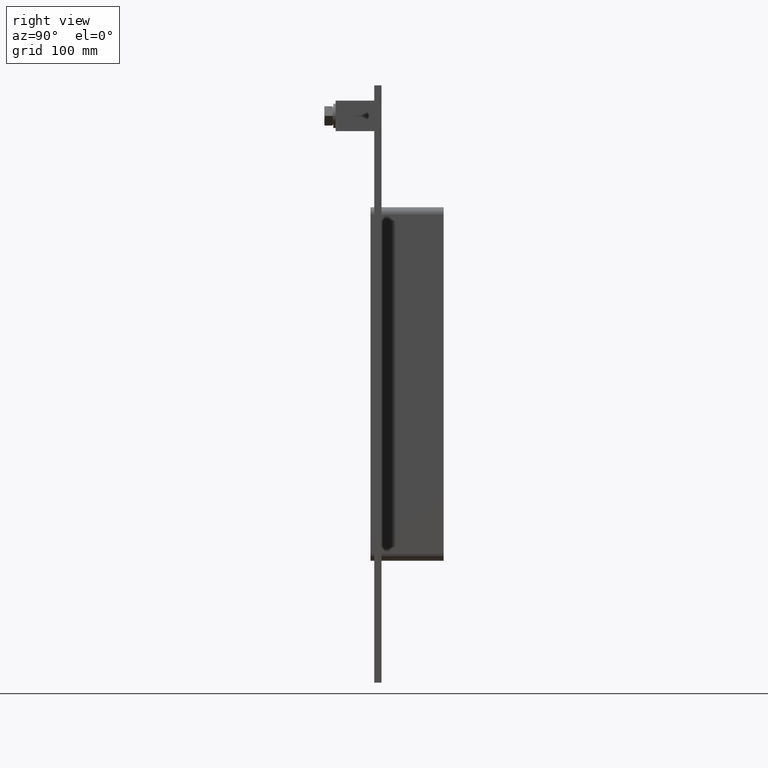
[diagram: clean part render]
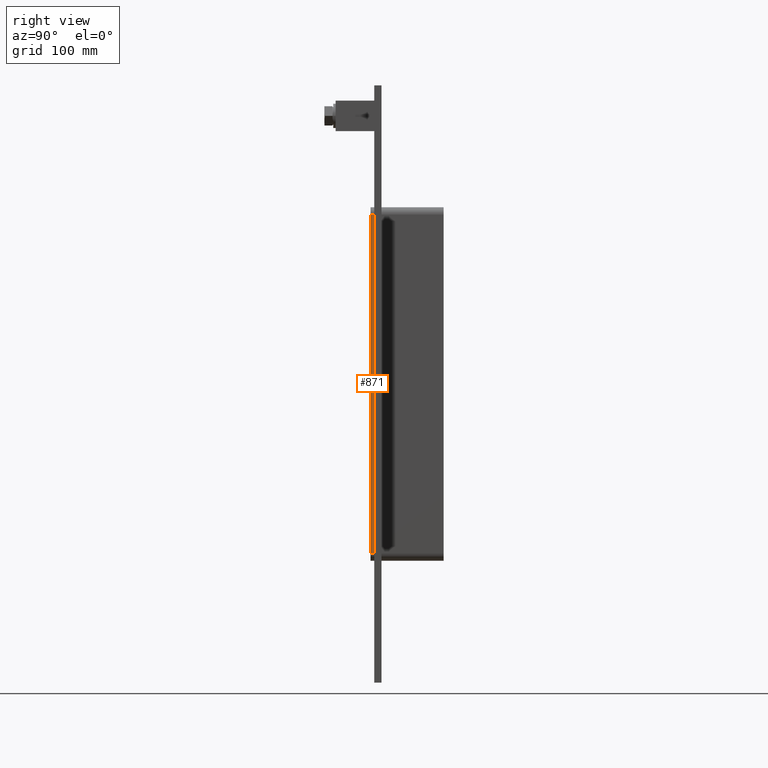
[diagram: same view with one face highlighted and labeled with its STEP entity id]
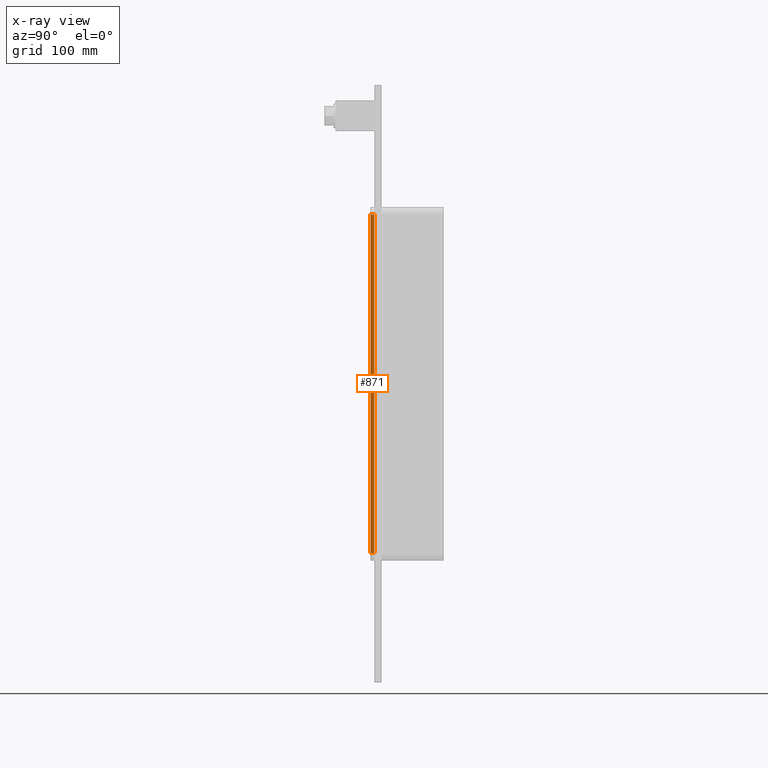
[diagram: x-ray of the same camera — body ghosted, the highlighted face saturated]
A machine part, right view. The second image highlights one B-rep face of the part: STEP entity #871.
The next image is the same camera in x-ray: the body ghosted, the highlighted face saturated — about 0% of this face is hidden behind the body in this view.
In plain terms, the highlighted planar face has unit normal (1, 0, 0).
Its self-contained STEP definition (entity closure, byte-faithful):
#576=CARTESIAN_POINT('',(66.25,0.0,139.0));
#577=VERTEX_POINT('',#576);
#585=CARTESIAN_POINT('',(66.25,0.0,-139.0));
#586=VERTEX_POINT('',#585);
#587=CARTESIAN_POINT('',(66.25,0.0,-139.0));
#588=DIRECTION('',(0.0,0.0,1.0));
#589=VECTOR('',#588,278.0);
#590=LINE('',#587,#589);
#591=EDGE_CURVE('',#586,#577,#590,.T.);
#742=CARTESIAN_POINT('',(66.25,-3.0,-139.0));
#743=VERTEX_POINT('',#742);
#744=CARTESIAN_POINT('',(66.25,0.0,-139.0));
#745=DIRECTION('',(0.0,-1.0,0.0));
#746=VECTOR('',#745,3.0);
#747=LINE('',#744,#746);
#748=EDGE_CURVE('',#586,#743,#747,.T.);
#848=CARTESIAN_POINT('',(66.25,0.0,145.0));
#849=DIRECTION('',(1.0,0.0,0.0));
#850=DIRECTION('',(0.0,0.0,-1.0));
#851=AXIS2_PLACEMENT_3D('',#848,#849,#850);
#852=PLANE('',#851);
#853=ORIENTED_EDGE('',*,*,#591,.T.);
#854=CARTESIAN_POINT('',(66.25,-3.0,139.0));
#855=VERTEX_POINT('',#854);
#856=CARTESIAN_POINT('',(66.25,-3.0,139.0));
#857=DIRECTION('',(0.0,1.0,0.0));
#858=VECTOR('',#857,3.0);
#859=LINE('',#856,#858);
#860=EDGE_CURVE('',#855,#577,#859,.T.);
#861=ORIENTED_EDGE('',*,*,#860,.F.);
#862=CARTESIAN_POINT('',(66.25,-3.0,-139.0));
#863=DIRECTION('',(0.0,0.0,1.0));
#864=VECTOR('',#863,278.0);
#865=LINE('',#862,#864);
#866=EDGE_CURVE('',#743,#855,#865,.T.);
#867=ORIENTED_EDGE('',*,*,#866,.F.);
#868=ORIENTED_EDGE('',*,*,#748,.F.);
#869=EDGE_LOOP('',(#853,#861,#867,#868));
#870=FACE_OUTER_BOUND('',#869,.T.);
#871=ADVANCED_FACE('',(#870),#852,.T.);